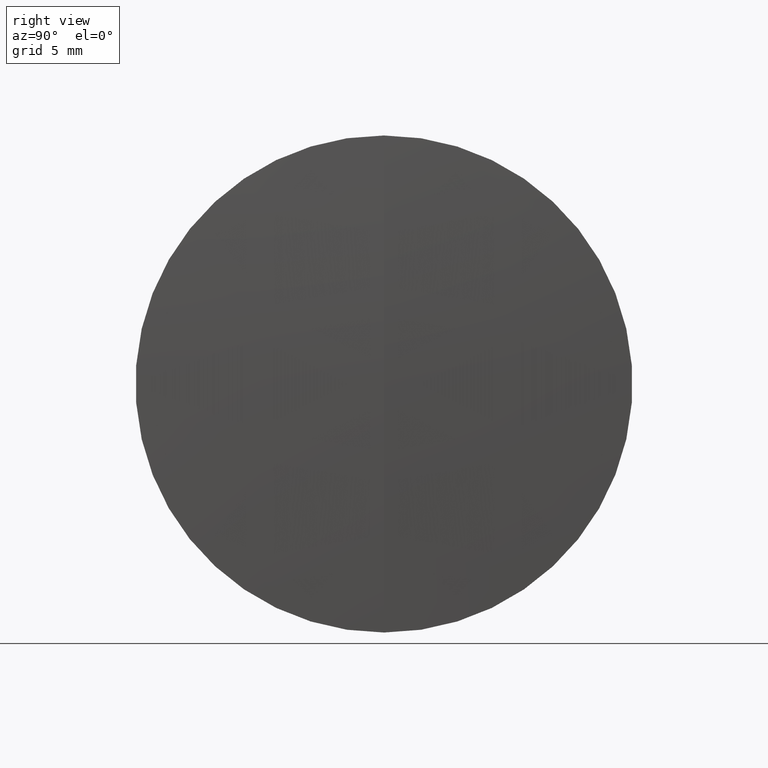
[diagram: clean part render]
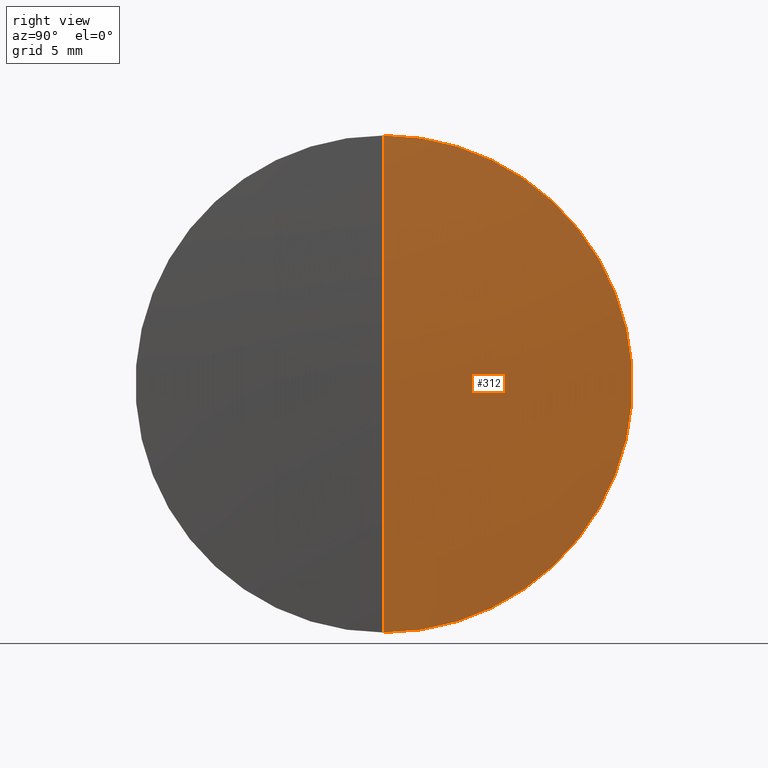
[diagram: same view with one face highlighted and labeled with its STEP entity id]
A machine part, right view. The second image highlights one B-rep face of the part: STEP entity #312.
In plain terms, the highlighted spherical surface has radius 230.7 mm.
Its self-contained STEP definition (entity closure, byte-faithful):
#6 = CIRCLE ( 'NONE', #199, 12.70000000000001000 ) ;
#7 = VERTEX_POINT ( 'NONE', #255 ) ;
#12 = DIRECTION ( 'NONE',  ( -1.000000000000000000, -0.0000000000000000000, -0.0000000000000000000 ) ) ;
#16 = EDGE_CURVE ( 'NONE', #56, #7, #328, .T. ) ;
#21 = DIRECTION ( 'NONE',  ( 0.0000000000000000000, 0.0000000000000000000, 1.000000000000000000 ) ) ;
#22 = DIRECTION ( 'NONE',  ( 0.0000000000000000000, -1.224646799147353200E-016, 1.000000000000000000 ) ) ;
#25 = AXIS2_PLACEMENT_3D ( 'NONE', #308, #245, #220 ) ;
#51 = EDGE_CURVE ( 'NONE', #56, #55, #168, .T. ) ;
#55 = VERTEX_POINT ( 'NONE', #257 ) ;
#56 = VERTEX_POINT ( 'NONE', #100 ) ;
#58 = AXIS2_PLACEMENT_3D ( 'NONE', #218, #161, #22 ) ;
#71 = DIRECTION ( 'NONE',  ( 0.0000000000000000000, 1.000000000000000000, 0.0000000000000000000 ) ) ;
#74 = CARTESIAN_POINT ( 'NONE',  ( 239.1460140306284900, 0.0000000000000000000, 0.0000000000000000000 ) ) ;
#100 = CARTESIAN_POINT ( 'NONE',  ( 239.4958458084194600, 0.0000000000000000000, 1.412630082816472000E-014 ) ) ;
#144 = DIRECTION ( 'NONE',  ( 0.0000000000000000000, 0.0000000000000000000, 1.000000000000000000 ) ) ;
#150 = EDGE_CURVE ( 'NONE', #7, #55, #6, .T. ) ;
#153 = FACE_OUTER_BOUND ( 'NONE', #181, .T. ) ;
#161 = DIRECTION ( 'NONE',  ( -0.0000000000000000000, 1.000000000000000000, 1.224646799147353200E-016 ) ) ;
#168 = CIRCLE ( 'NONE', #58, 230.7000000000000200 ) ;
#181 = EDGE_LOOP ( 'NONE', ( #277, #224, #291 ) ) ;
#195 = CARTESIAN_POINT ( 'NONE',  ( 8.795845808419439700, 0.0000000000000000000, 0.0000000000000000000 ) ) ;
#199 = AXIS2_PLACEMENT_3D ( 'NONE', #74, #12, #144 ) ;
#203 = AXIS2_PLACEMENT_3D ( 'NONE', #195, #71, #21 ) ;
#218 = CARTESIAN_POINT ( 'NONE',  ( 8.795845808419439700, 0.0000000000000000000, 0.0000000000000000000 ) ) ;
#220 = DIRECTION ( 'NONE',  ( 0.0000000000000000000, 0.0000000000000000000, -1.000000000000000000 ) ) ;
#224 = ORIENTED_EDGE ( 'NONE', *, *, #51, .T. ) ;
#245 = DIRECTION ( 'NONE',  ( 0.0000000000000000000, -1.000000000000000000, 0.0000000000000000000 ) ) ;
#255 = CARTESIAN_POINT ( 'NONE',  ( 239.1460140306284900, 0.0000000000000000000, 12.70000000000001000 ) ) ;
#257 = CARTESIAN_POINT ( 'NONE',  ( 239.1460140306284900, 1.555301434917139800E-015, -12.70000000000001200 ) ) ;
#277 = ORIENTED_EDGE ( 'NONE', *, *, #16, .F. ) ;
#291 = ORIENTED_EDGE ( 'NONE', *, *, #150, .F. ) ;
#295 = SPHERICAL_SURFACE ( 'NONE', #203, 230.7000000000000200 ) ;
#308 = CARTESIAN_POINT ( 'NONE',  ( 8.795845808419439700, 0.0000000000000000000, 0.0000000000000000000 ) ) ;
#312 = ADVANCED_FACE ( 'NONE', ( #153 ), #295, .T. ) ;
#328 = CIRCLE ( 'NONE', #25, 230.7000000000000200 ) ;